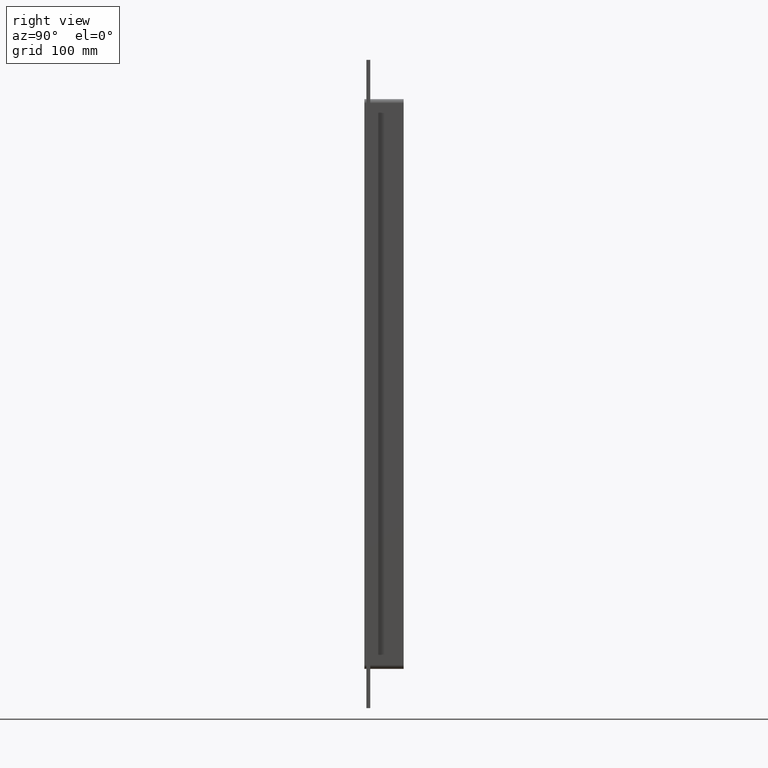
[diagram: clean part render]
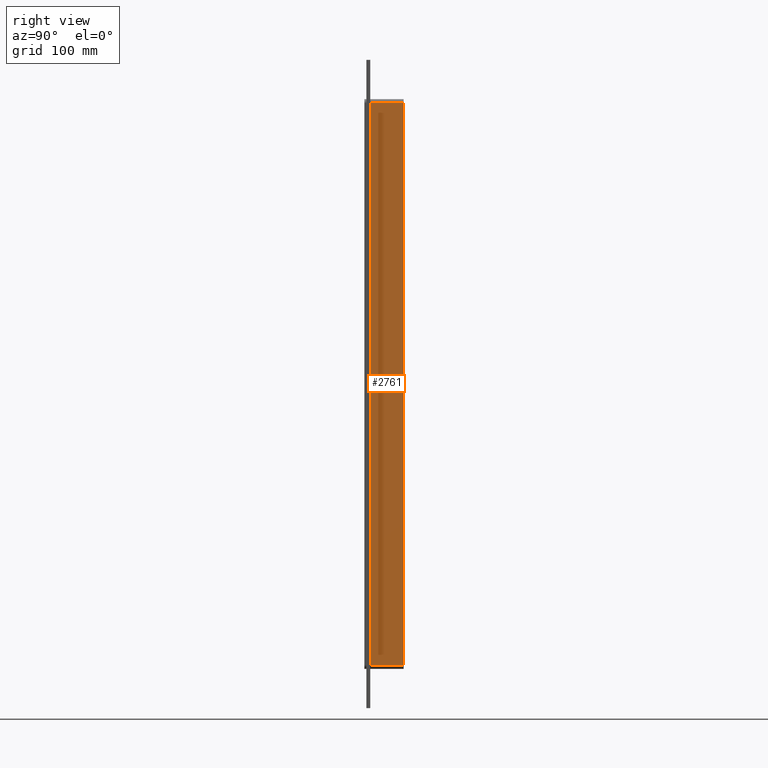
[diagram: same view with one face highlighted and labeled with its STEP entity id]
A machine part, right view. The second image highlights one B-rep face of the part: STEP entity #2761.
In plain terms, the highlighted planar face has unit normal (1, 0, 0).
Its self-contained STEP definition (entity closure, byte-faithful):
#1347=CARTESIAN_POINT('',(196.75000000000006,57.0,-429.00000000000006));
#1348=VERTEX_POINT('',#1347);
#1398=CARTESIAN_POINT('',(196.75000000000006,57.0,429.0));
#1399=VERTEX_POINT('',#1398);
#1407=CARTESIAN_POINT('',(196.75000000000006,57.0,429.0));
#1408=DIRECTION('',(0.0,0.0,-1.0));
#1409=VECTOR('',#1408,858.0);
#1410=LINE('',#1407,#1409);
#1411=EDGE_CURVE('',#1399,#1348,#1410,.T.);
#2358=CARTESIAN_POINT('',(196.75000000000006,6.000000000000001,-429.00000000000006));
#2359=VERTEX_POINT('',#2358);
#2367=CARTESIAN_POINT('',(196.75000000000006,6.000000000000001,429.0));
#2368=VERTEX_POINT('',#2367);
#2369=CARTESIAN_POINT('',(196.75000000000006,6.000000000000001,429.0));
#2370=DIRECTION('',(0.0,0.0,-1.0));
#2371=VECTOR('',#2370,858.0);
#2372=LINE('',#2369,#2371);
#2373=EDGE_CURVE('',#2368,#2359,#2372,.T.);
#2712=CARTESIAN_POINT('',(196.75000000000006,6.000000000000001,429.0));
#2713=DIRECTION('',(0.0,1.0,0.0));
#2714=VECTOR('',#2713,51.0);
#2715=LINE('',#2712,#2714);
#2716=EDGE_CURVE('',#2368,#1399,#2715,.T.);
#2745=CARTESIAN_POINT('',(196.75000000000006,0.0,435.0));
#2746=DIRECTION('',(1.0,0.0,0.0));
#2747=DIRECTION('',(0.0,0.0,-1.0));
#2748=AXIS2_PLACEMENT_3D('',#2745,#2746,#2747);
#2749=PLANE('',#2748);
#2750=ORIENTED_EDGE('',*,*,#2373,.T.);
#2751=CARTESIAN_POINT('',(196.75000000000006,57.0,-429.00000000000006));
#2752=DIRECTION('',(0.0,-1.0,0.0));
#2753=VECTOR('',#2752,51.0);
#2754=LINE('',#2751,#2753);
#2755=EDGE_CURVE('',#1348,#2359,#2754,.T.);
#2756=ORIENTED_EDGE('',*,*,#2755,.F.);
#2757=ORIENTED_EDGE('',*,*,#1411,.F.);
#2758=ORIENTED_EDGE('',*,*,#2716,.F.);
#2759=EDGE_LOOP('',(#2750,#2756,#2757,#2758));
#2760=FACE_OUTER_BOUND('',#2759,.T.);
#2761=ADVANCED_FACE('',(#2760),#2749,.T.);